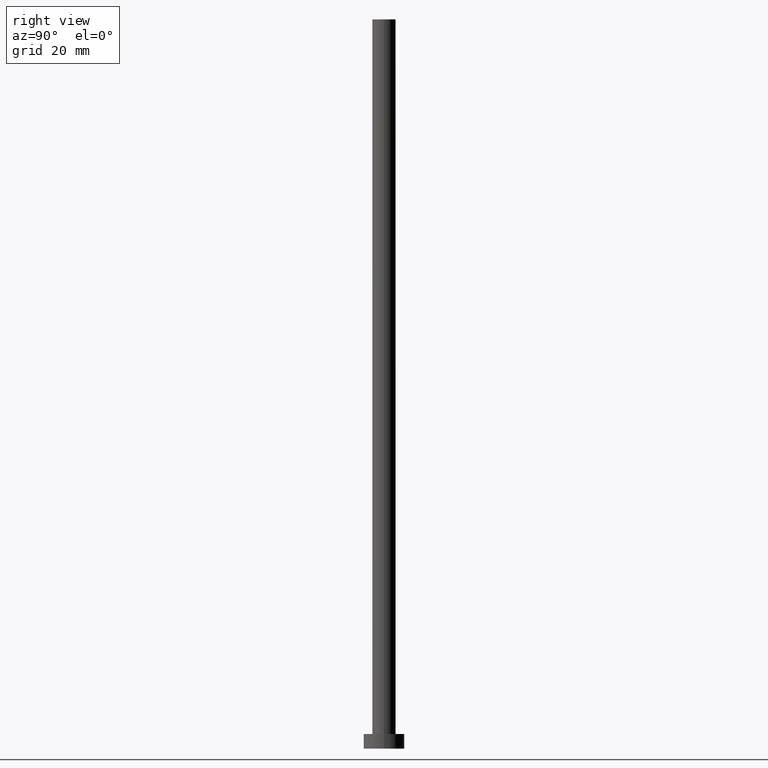
[diagram: clean part render]
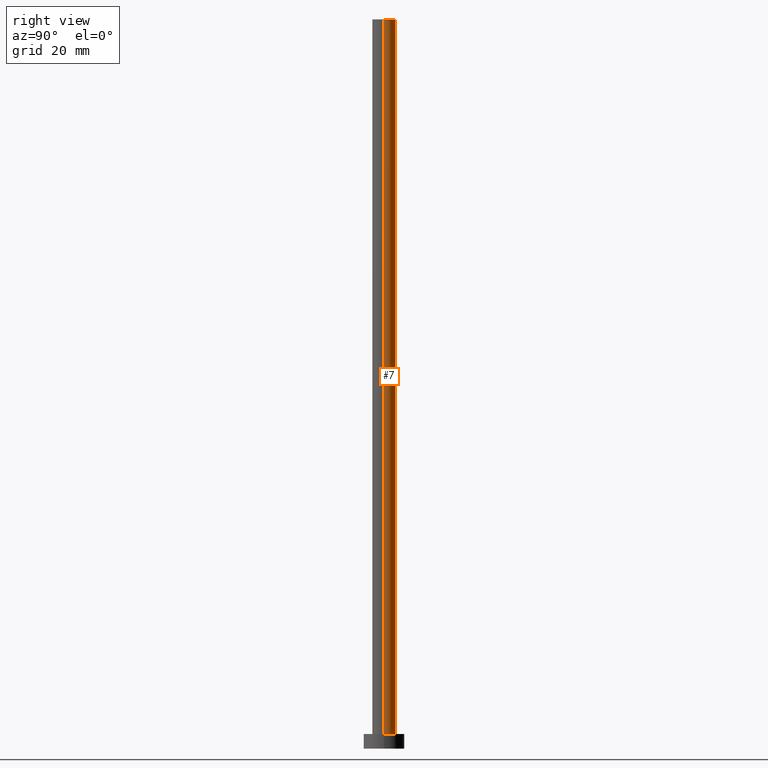
[diagram: same view with one face highlighted and labeled with its STEP entity id]
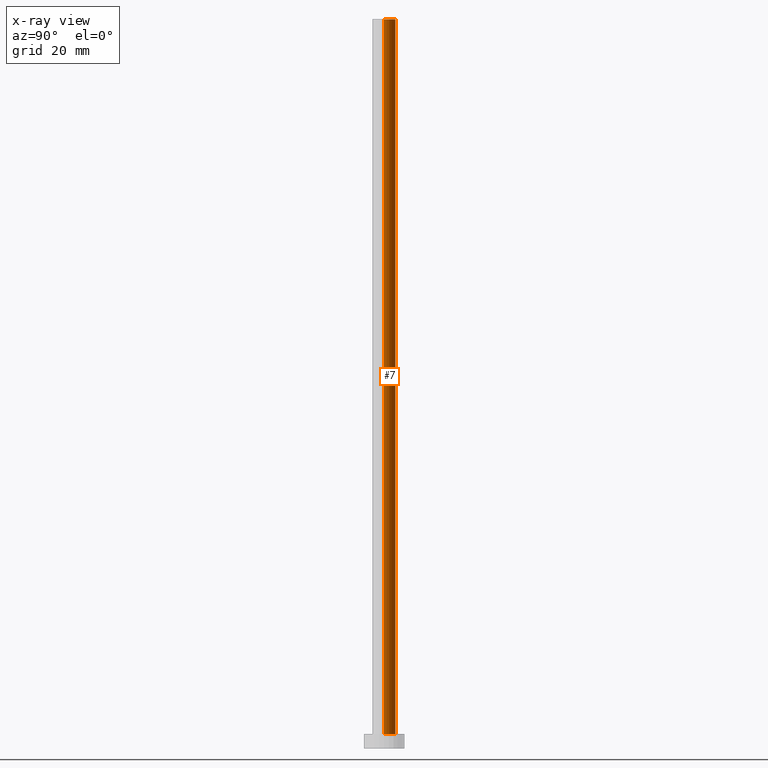
[diagram: x-ray of the same camera — body ghosted, the highlighted face saturated]
A machine part, right view. The second image highlights one B-rep face of the part: STEP entity #7.
The next image is the same camera in x-ray: the body ghosted, the highlighted face saturated — about 0% of this face is hidden behind the body in this view.
In plain terms, the highlighted cylindrical surface (edge-blend (fillet) strip) has radius 4 mm, axis along (-0, -0, -1).
Its self-contained STEP definition (entity closure, byte-faithful):
#2 = CARTESIAN_POINT ( 'NONE',  ( 0.000000000000000000, 0.000000000000000000, 250.0000000000000000 ) ) ;
#6 = CARTESIAN_POINT ( 'NONE',  ( 0.000000000000000000, 0.000000000000000000, 250.0000000000000000 ) ) ;
#7 = ADVANCED_FACE ( 'NONE', ( #21 ), #109, .T. ) ;
#8 = VERTEX_POINT ( 'NONE', #160 ) ;
#21 = FACE_OUTER_BOUND ( 'NONE', #159, .T. ) ;
#25 = EDGE_CURVE ( 'NONE', #57, #112, #177, .T. ) ;
#28 = ORIENTED_EDGE ( 'NONE', *, *, #84, .F. ) ;
#33 = LINE ( 'NONE', #71, #210 ) ;
#34 = CARTESIAN_POINT ( 'NONE',  ( -4.000000000000000000, 0.000000000000000000, 5.000000000000000000 ) ) ;
#44 = DIRECTION ( 'NONE',  ( 1.000000000000000000, 0.000000000000000000, 0.000000000000000000 ) ) ;
#46 = DIRECTION ( 'NONE',  ( -1.000000000000000000, 0.000000000000000000, 0.000000000000000000 ) ) ;
#47 = ORIENTED_EDGE ( 'NONE', *, *, #25, .T. ) ;
#48 = EDGE_CURVE ( 'NONE', #8, #112, #244, .T. ) ;
#57 = VERTEX_POINT ( 'NONE', #67 ) ;
#61 = VERTEX_POINT ( 'NONE', #229 ) ;
#65 = CARTESIAN_POINT ( 'NONE',  ( -4.000000000000000000, 0.000000000000000000, 250.0000000000000000 ) ) ;
#67 = CARTESIAN_POINT ( 'NONE',  ( 4.000000000000000000, 4.898587196589412829E-16, 5.000000000000000000 ) ) ;
#69 = AXIS2_PLACEMENT_3D ( 'NONE', #2, #81, #46 ) ;
#71 = CARTESIAN_POINT ( 'NONE',  ( 4.000000000000000000, 4.898587196589412829E-16, 250.0000000000000000 ) ) ;
#74 = EDGE_CURVE ( 'NONE', #61, #57, #33, .T. ) ;
#78 = CIRCLE ( 'NONE', #144, 4.000000000000000000 ) ;
#81 = DIRECTION ( 'NONE',  ( -0.000000000000000000, -0.000000000000000000, -1.000000000000000000 ) ) ;
#84 = EDGE_CURVE ( 'NONE', #61, #8, #78, .T. ) ;
#109 = CYLINDRICAL_SURFACE ( 'NONE', #69, 4.000000000000000000 ) ;
#112 = VERTEX_POINT ( 'NONE', #34 ) ;
#124 = ORIENTED_EDGE ( 'NONE', *, *, #48, .F. ) ;
#129 = DIRECTION ( 'NONE',  ( 1.000000000000000000, 0.000000000000000000, 0.000000000000000000 ) ) ;
#144 = AXIS2_PLACEMENT_3D ( 'NONE', #6, #218, #44 ) ;
#145 = DIRECTION ( 'NONE',  ( -0.000000000000000000, -0.000000000000000000, -1.000000000000000000 ) ) ;
#150 = DIRECTION ( 'NONE',  ( -0.000000000000000000, -0.000000000000000000, -1.000000000000000000 ) ) ;
#158 = CARTESIAN_POINT ( 'NONE',  ( 0.000000000000000000, 0.000000000000000000, 5.000000000000000000 ) ) ;
#159 = EDGE_LOOP ( 'NONE', ( #28, #235, #47, #124 ) ) ;
#160 = CARTESIAN_POINT ( 'NONE',  ( -4.000000000000000000, 0.000000000000000000, 250.0000000000000000 ) ) ;
#177 = CIRCLE ( 'NONE', #191, 4.000000000000000000 ) ;
#180 = DIRECTION ( 'NONE',  ( 0.000000000000000000, 0.000000000000000000, 1.000000000000000000 ) ) ;
#187 = VECTOR ( 'NONE', #145, 1000.000000000000000 ) ;
#191 = AXIS2_PLACEMENT_3D ( 'NONE', #158, #180, #129 ) ;
#210 = VECTOR ( 'NONE', #150, 1000.000000000000000 ) ;
#218 = DIRECTION ( 'NONE',  ( 0.000000000000000000, 0.000000000000000000, 1.000000000000000000 ) ) ;
#229 = CARTESIAN_POINT ( 'NONE',  ( 4.000000000000000000, 4.898587196589412829E-16, 250.0000000000000000 ) ) ;
#235 = ORIENTED_EDGE ( 'NONE', *, *, #74, .T. ) ;
#244 = LINE ( 'NONE', #65, #187 ) ;